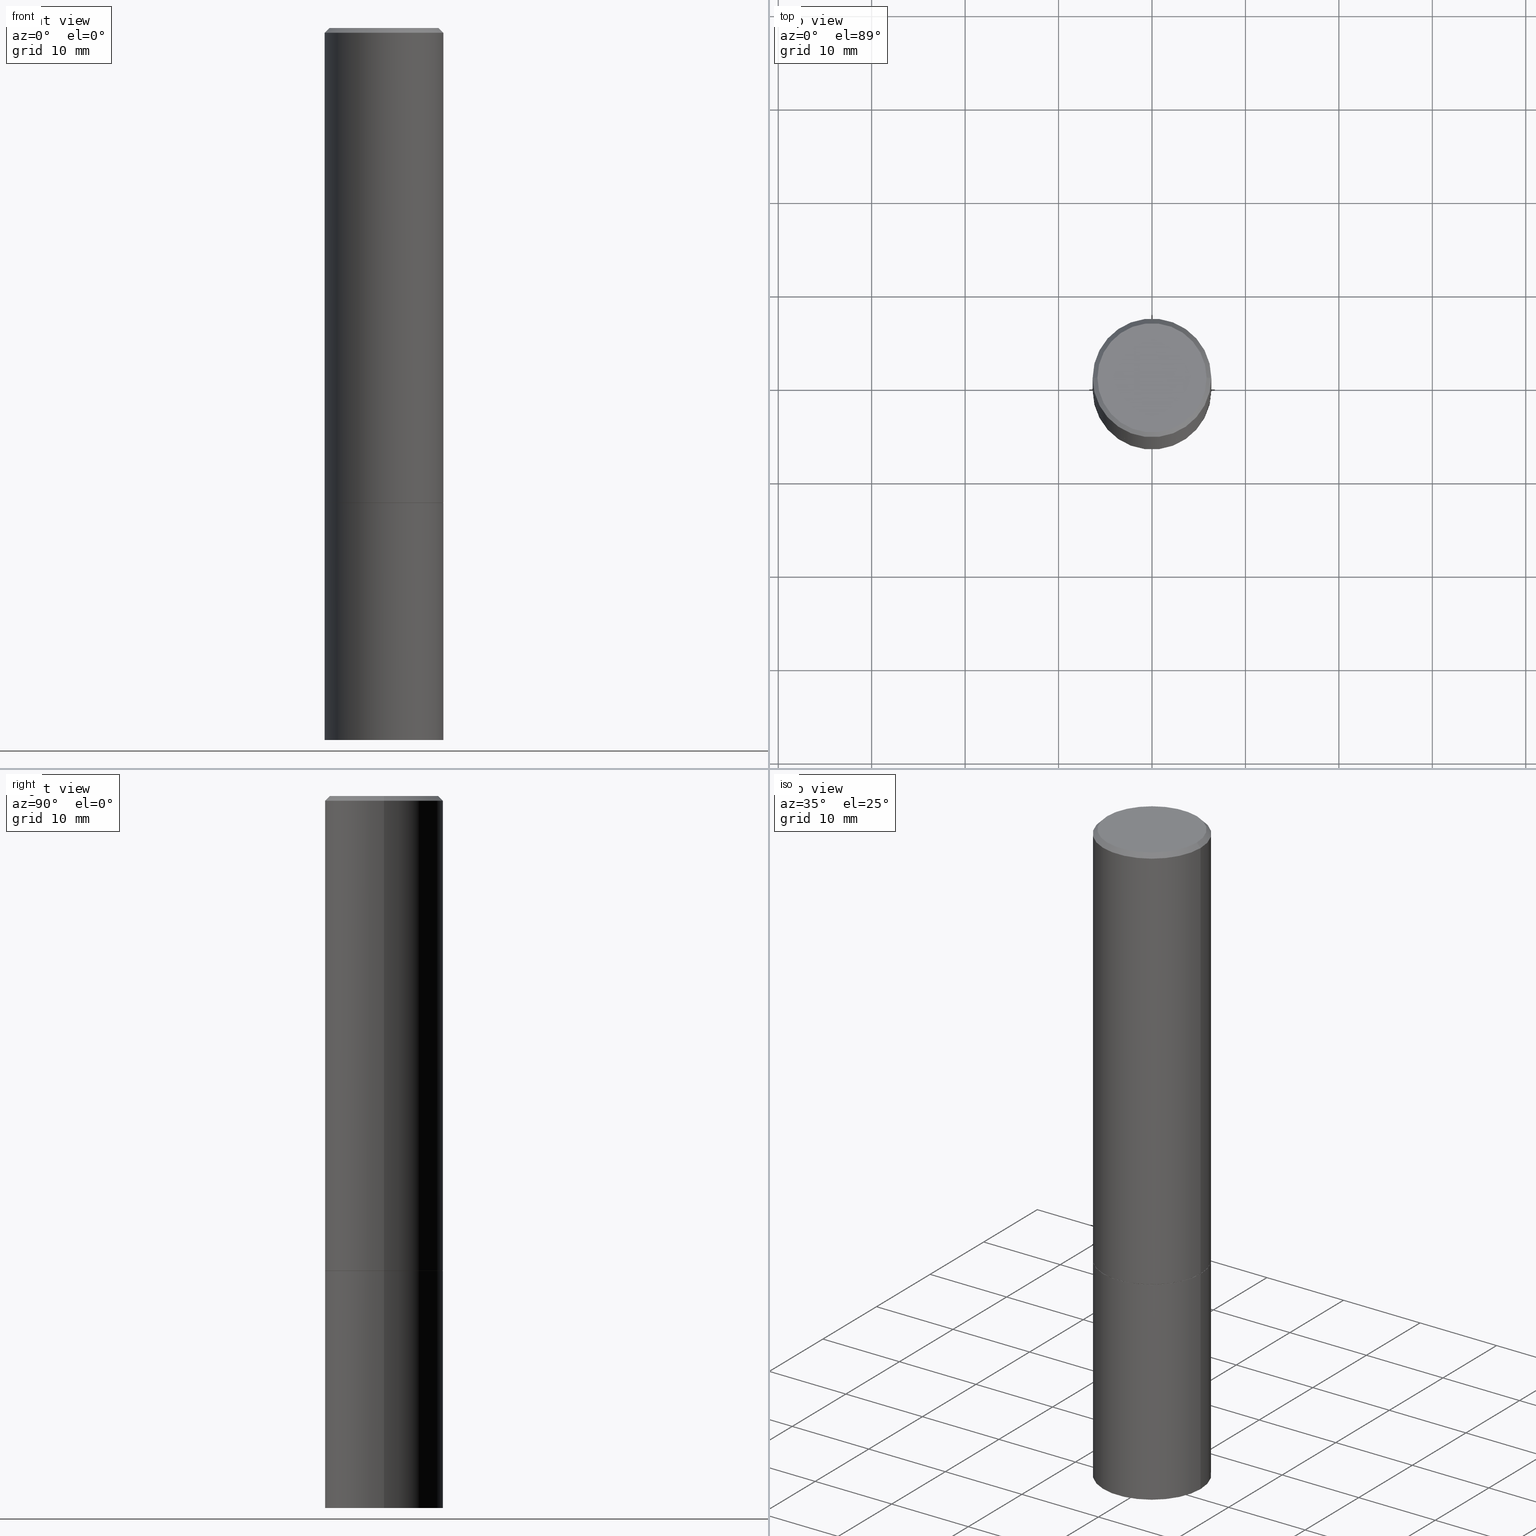
[diagram: canonical four-view strip — front | top / right | iso, engineering-drawing reading convention]
A machine part, canonical four-view strip (front | top / right | iso — engineering-drawing reading convention). The complete STEP part file that produces these views, byte-faithful:
ISO-10303-21;
HEADER;
FILE_DESCRIPTION (( 'STEP AP203' ),
    '1' );
FILE_NAME ('39363.STEP',
    '2024-02-28T00:29:45',
    ( '' ),
    ( '' ),
    'SwSTEP 2.0',
    'SolidWorks 2023',
    '' );
FILE_SCHEMA (( 'CONFIG_CONTROL_DESIGN' ));
ENDSEC;

DATA;
#1 = DIRECTION ( 'NONE',  ( -2.445468806185136597E-29, 3.491481338843145583E-15, 1.000000000000000000 ) ) ;
#2 = CARTESIAN_POINT ( 'NONE',  ( -0.2499999999999998057, 1.675911042644702196E-15, -0.02000000000000005246 ) ) ;
#3 = ADVANCED_FACE ( 'NONE', ( #242 ), #245, .T. ) ;
#4 = DIRECTION ( 'NONE',  ( 2.438088387897960049E-29, -3.491481338843145188E-15, -1.000000000000000000 ) ) ;
#5 = AXIS2_PLACEMENT_3D ( 'NONE', #352, #177, #94 ) ;
#6 =( NAMED_UNIT ( * ) PLANE_ANGLE_UNIT ( ) SI_UNIT ( $, .RADIAN. ) );
#7 = EDGE_LOOP ( 'NONE', ( #306, #108 ) ) ;
#8 = DIRECTION ( 'NONE',  ( -2.445468806185136597E-29, 3.491481338843145583E-15, 1.000000000000000000 ) ) ;
#9 = DIRECTION ( 'NONE',  ( -2.445468806185136877E-29, 3.491481338843145188E-15, 1.000000000000000000 ) ) ;
#10 = ORIENTED_EDGE ( 'NONE', *, *, #91, .T. ) ;
#11 = EDGE_CURVE ( 'NONE', #276, #206, #348, .T. ) ;
#12 = AXIS2_PLACEMENT_3D ( 'NONE', #165, #46, #333 ) ;
#13 = AXIS2_PLACEMENT_3D ( 'NONE', #256, #173, #87 ) ;
#14 = APPROVAL_DATE_TIME ( #267, #261 ) ;
#15 = CARTESIAN_POINT ( 'NONE',  ( -0.2499999999999998057, 1.675911042644702196E-15, -0.02000000000000005246 ) ) ;
#16 = ADVANCED_FACE ( 'NONE', ( #360 ), #269, .T. ) ;
#17 = APPLICATION_PROTOCOL_DEFINITION ( 'international standard', 'config_control_design', 1994, #347 ) ;
#18 = DIRECTION ( 'NONE',  ( -0.7071067811865464625, 2.468850131082245622E-15, -0.7071067811865485719 ) ) ;
#19 = DATE_AND_TIME ( #160, #365 ) ;
#20 = ORIENTED_EDGE ( 'NONE', *, *, #117, .T. ) ;
#21 = CIRCLE ( 'NONE', #13, 0.2499999999999998057 ) ;
#22 = VECTOR ( 'NONE', #145, 39.37007874015748143 ) ;
#23 = PERSON_AND_ORGANIZATION ( #195, #159 ) ;
#24 = DIRECTION ( 'NONE',  ( 1.000000000000000000, -6.982962677686266711E-15, 0.000000000000000000 ) ) ;
#25 = EDGE_LOOP ( 'NONE', ( #158, #217, #324, #154 ) ) ;
#26 = PRODUCT_DEFINITION ( 'UNKNOWN', '', #95, #227 ) ;
#27 = FACE_OUTER_BOUND ( 'NONE', #25, .T. ) ;
#28 = DIRECTION ( 'NONE',  ( -2.445468806185136877E-29, 3.491481338843145188E-15, 1.000000000000000000 ) ) ;
#29 = CC_DESIGN_PERSON_AND_ORGANIZATION_ASSIGNMENT ( #361, #129, ( #93 ) ) ;
#30 = CARTESIAN_POINT ( 'NONE',  ( -0.2500000000000000000, -1.748293572161903489E-15, -1.999000000000000110 ) ) ;
#31 = DIRECTION ( 'NONE',  ( -2.445468806185136597E-29, 3.491481338843145583E-15, 1.000000000000000000 ) ) ;
#32 = CIRCLE ( 'NONE', #5, 0.2489999999999999991 ) ;
#33 = ORIENTED_EDGE ( 'NONE', *, *, #11, .F. ) ;
#34 = ADVANCED_FACE ( 'NONE', ( #130 ), #135, .F. ) ;
#35 = CARTESIAN_POINT ( 'NONE',  ( 4.890937612370274875E-29, -6.982962677686292743E-15, -2.000000000000000444 ) ) ;
#36 = ORIENTED_EDGE ( 'NONE', *, *, #55, .F. ) ;
#37 = CARTESIAN_POINT ( 'NONE',  ( 4.888492143564088712E-29, -6.979471196347448158E-15, -1.999000000000000110 ) ) ;
#38 = ORIENTED_EDGE ( 'NONE', *, *, #117, .F. ) ;
#39 = AXIS2_PLACEMENT_3D ( 'NONE', #291, #209, #92 ) ;
#40 = DIRECTION ( 'NONE',  ( 1.000000000000000000, -6.982962677686262766E-15, 0.000000000000000000 ) ) ;
#41 = VERTEX_POINT ( 'NONE', #105 ) ;
#42 = DIRECTION ( 'NONE',  ( -2.445468806185136597E-29, 3.491481338843145583E-15, 1.000000000000000000 ) ) ;
#43 = CC_DESIGN_DATE_AND_TIME_ASSIGNMENT ( #100, #80, ( #359 ) ) ;
#44 = ORIENTED_EDGE ( 'NONE', *, *, #11, .T. ) ;
#45 = CALENDAR_DATE ( 2024, 27, 2 ) ;
#46 = DIRECTION ( 'NONE',  ( 2.445468806185136597E-29, -3.491481338843145583E-15, -1.000000000000000000 ) ) ;
#47 = APPROVAL_PERSON_ORGANIZATION ( #23, #363, #327 ) ;
#48 = APPROVAL_ROLE ( '' ) ;
#49 = CARTESIAN_POINT ( 'NONE',  ( 1.606081415867839884E-15, 0.2299999999999997879, -8.030407079339228016E-16 ) ) ;
#50 = DATE_AND_TIME ( #277, #253 ) ;
#51 = CARTESIAN_POINT ( 'NONE',  ( -0.2500000000000000000, -6.952346507707613689E-15, -2.000000000000000444 ) ) ;
#52 = PERSON_AND_ORGANIZATION_ROLE ( 'creator' ) ;
#53 = VERTEX_POINT ( 'NONE', #271 ) ;
#54 =( GEOMETRIC_REPRESENTATION_CONTEXT ( 3 ) GLOBAL_UNCERTAINTY_ASSIGNED_CONTEXT ( ( #61 ) ) GLOBAL_UNIT_ASSIGNED_CONTEXT ( ( #326, #6, #66 ) ) REPRESENTATION_CONTEXT ( 'NONE', 'WORKASPACE' ) );
#55 = EDGE_CURVE ( 'NONE', #328, #41, #107, .T. ) ;
#56 = ORIENTED_EDGE ( 'NONE', *, *, #149, .T. ) ;
#57 = APPROVAL ( #239, 'UNSPECIFIED' ) ;
#58 = CARTESIAN_POINT ( 'NONE',  ( 0.000000000000000000, 0.000000000000000000, 0.000000000000000000 ) ) ;
#59 = AXIS2_PLACEMENT_3D ( 'NONE', #74, #163, #248 ) ;
#60 = VECTOR ( 'NONE', #9, 39.37007874015748143 ) ;
#61 = UNCERTAINTY_MEASURE_WITH_UNIT (LENGTH_MEASURE( 1.000000000000000082E-05 ), #326, 'distance_accuracy_value', 'NONE');
#62 = CYLINDRICAL_SURFACE ( 'NONE', #70, 0.2499999999999998890 ) ;
#63 = DIRECTION ( 'NONE',  ( -1.000000000000000000, 6.982962677686265922E-15, -4.876176775795935793E-29 ) ) ;
#64 = DIRECTION ( 'NONE',  ( 1.000000000000000000, -6.982962677686267499E-15, 4.876176775795936353E-29 ) ) ;
#65 = ORIENTED_EDGE ( 'NONE', *, *, #102, .F. ) ;
#66 =( NAMED_UNIT ( * ) SI_UNIT ( $, .STERADIAN. ) SOLID_ANGLE_UNIT ( ) );
#67 = ORIENTED_EDGE ( 'NONE', *, *, #143, .T. ) ;
#68 = CARTESIAN_POINT ( 'NONE',  ( 0.2499999999999998057, -1.784954126219744611E-15, -0.02000000000000005246 ) ) ;
#69 = DIRECTION ( 'NONE',  ( -2.445468806185136597E-29, 3.491481338843145583E-15, 1.000000000000000000 ) ) ;
#70 = AXIS2_PLACEMENT_3D ( 'NONE', #285, #31, #96 ) ;
#71 = APPROVAL_STATUS ( 'not_yet_approved' ) ;
#72 = DIRECTION ( 'NONE',  ( -1.000000000000000000, 6.982962677686265922E-15, -4.876176775795935793E-29 ) ) ;
#73 = PERSON_AND_ORGANIZATION_ROLE ( 'classification_officer' ) ;
#74 = CARTESIAN_POINT ( 'NONE',  ( 0.000000000000000000, 0.000000000000000000, 0.000000000000000000 ) ) ;
#75 = PRODUCT_DEFINITION_SHAPE ( 'NONE', 'NONE',  #26 ) ;
#76 = DIRECTION ( 'NONE',  ( -2.445468806185136597E-29, 3.491481338843145583E-15, 1.000000000000000000 ) ) ;
#77 = APPROVAL_STATUS ( 'not_yet_approved' ) ;
#78 = DIRECTION ( 'NONE',  ( 2.438088387897960049E-29, -3.491481338843145188E-15, -1.000000000000000000 ) ) ;
#79 = EDGE_CURVE ( 'NONE', #116, #152, #161, .T. ) ;
#80 = DATE_TIME_ROLE ( 'classification_date' ) ;
#81 = CARTESIAN_POINT ( 'NONE',  ( 0.000000000000000000, 0.000000000000000000, 0.000000000000000000 ) ) ;
#82 = AXIS2_PLACEMENT_3D ( 'NONE', #58, #1, #142 ) ;
#83 = CC_DESIGN_PERSON_AND_ORGANIZATION_ASSIGNMENT ( #193, #136, ( #95 ) ) ;
#84 = LINE ( 'NONE', #230, #22 ) ;
#85 = CARTESIAN_POINT ( 'NONE',  ( -0.2499999999999998890, 1.776356839400249676E-15, -1.229733772563726025E-29 ) ) ;
#86 = ADVANCED_FACE ( 'NONE', ( #335 ), #202, .T. ) ;
#87 = DIRECTION ( 'NONE',  ( 1.000000000000000000, -6.982962677686266711E-15, 0.000000000000000000 ) ) ;
#88 = LOCAL_TIME ( 19, 29, 45.00000000000000000, #309 ) ;
#89 = FACE_OUTER_BOUND ( 'NONE', #214, .T. ) ;
#90 = CARTESIAN_POINT ( 'NONE',  ( 4.890937612370274875E-29, -6.982962677686292743E-15, -2.000000000000000444 ) ) ;
#91 = EDGE_CURVE ( 'NONE', #125, #206, #308, .T. ) ;
#92 = DIRECTION ( 'NONE',  ( 1.000000000000000000, -6.982962677686267499E-15, 4.876176775795936353E-29 ) ) ;
#93 = PRODUCT ( '39363', '39363', '', ( #218 ) ) ;
#94 = DIRECTION ( 'NONE',  ( 1.000000000000000000, -6.982962677686266711E-15, 0.000000000000000000 ) ) ;
#95 = PRODUCT_DEFINITION_FORMATION_WITH_SPECIFIED_SOURCE ( 'ANY', '', #93, .NOT_KNOWN. ) ;
#96 = DIRECTION ( 'NONE',  ( 1.000000000000000000, -6.982962677686266711E-15, 4.876176775795935793E-29 ) ) ;
#97 = EDGE_CURVE ( 'NONE', #328, #116, #207, .T. ) ;
#98 = CARTESIAN_POINT ( 'NONE',  ( 4.890937612370285420E-31, -6.982962677686308865E-17, -0.02000000000000005246 ) ) ;
#99 = VERTEX_POINT ( 'NONE', #51 ) ;
#100 = DATE_AND_TIME ( #246, #204 ) ;
#101 = ORIENTED_EDGE ( 'NONE', *, *, #102, .T. ) ;
#102 = EDGE_CURVE ( 'NONE', #152, #41, #181, .T. ) ;
#103 = PERSON_AND_ORGANIZATION ( #195, #159 ) ;
#104 = CARTESIAN_POINT ( 'NONE',  ( 4.890937612370274875E-29, -6.982962677686292743E-15, -2.000000000000000444 ) ) ;
#105 = CARTESIAN_POINT ( 'NONE',  ( 0.2500000000000000000, -8.725211865769015625E-15, -1.999000000000000110 ) ) ;
#106 = PERSON_AND_ORGANIZATION_ROLE ( 'design_supplier' ) ;
#107 = LINE ( 'NONE', #357, #126 ) ;
#108 = ORIENTED_EDGE ( 'NONE', *, *, #223, .T. ) ;
#109 = CARTESIAN_POINT ( 'NONE',  ( -0.2299999999999997879, 1.640996229256271139E-15, -1.135408596578604859E-29 ) ) ;
#110 = CIRCLE ( 'NONE', #197, 0.2500000000000000000 ) ;
#111 = DIRECTION ( 'NONE',  ( -1.000000000000000000, 6.982962677686265922E-15, -4.876176775795935793E-29 ) ) ;
#112 = APPLICATION_CONTEXT ( 'configuration controlled 3d designs of mechanical parts and assemblies' ) ;
#113 = FACE_OUTER_BOUND ( 'NONE', #260, .T. ) ;
#114 = ADVANCED_FACE ( 'NONE', ( #137 ), #336, .T. ) ;
#115 = DIRECTION ( 'NONE',  ( -2.445468806185136597E-29, 3.491481338843145583E-15, 1.000000000000000000 ) ) ;
#116 = VERTEX_POINT ( 'NONE', #366 ) ;
#117 = EDGE_CURVE ( 'NONE', #206, #276, #21, .T. ) ;
#118 = CONICAL_SURFACE ( 'NONE', #231, 0.2499999999999998057, 0.7853981633974468357 ) ;
#119 = VERTEX_POINT ( 'NONE', #343 ) ;
#120 = MANIFOLD_SOLID_BREP ( 'Body-Move/Copy2[2]', #301 ) ;
#121 = FACE_OUTER_BOUND ( 'NONE', #156, .T. ) ;
#122 = ORIENTED_EDGE ( 'NONE', *, *, #97, .T. ) ;
#123 = ADVANCED_BREP_SHAPE_REPRESENTATION ( '39363', ( #250, #120, #257 ), #54 ) ;
#124 = CARTESIAN_POINT ( 'NONE',  ( 0.2299999999999997879, -1.681434332853597631E-15, 1.149527484987431960E-29 ) ) ;
#125 = VERTEX_POINT ( 'NONE', #109 ) ;
#126 = VECTOR ( 'NONE', #194, 39.37007874015748143 ) ;
#127 = AXIS2_PLACEMENT_3D ( 'NONE', #35, #42, #236 ) ;
#128 = ADVANCED_FACE ( 'NONE', ( #89 ), #255, .F. ) ;
#129 = PERSON_AND_ORGANIZATION_ROLE ( 'design_owner' ) ;
#130 = FACE_OUTER_BOUND ( 'NONE', #7, .T. ) ;
#131 = PERSON_AND_ORGANIZATION ( #195, #159 ) ;
#132 = ORIENTED_EDGE ( 'NONE', *, *, #243, .T. ) ;
#133 = COORDINATED_UNIVERSAL_TIME_OFFSET ( 5, 0, .BEHIND. ) ;
#134 = EDGE_CURVE ( 'NONE', #152, #206, #315, .T. ) ;
#135 = PLANE ( 'NONE',  #262 ) ;
#136 = PERSON_AND_ORGANIZATION_ROLE ( 'creator' ) ;
#137 = FACE_OUTER_BOUND ( 'NONE', #176, .T. ) ;
#138 = DIRECTION ( 'NONE',  ( -0.7071067811864267805, 7.493145998869918709E-15, 0.7071067811866682540 ) ) ;
#139 = FACE_OUTER_BOUND ( 'NONE', #237, .T. ) ;
#140 = APPROVAL_PERSON_ORGANIZATION ( #162, #261, #48 ) ;
#141 = CARTESIAN_POINT ( 'NONE',  ( 0.2500000000000000000, -1.745740669421566678E-15, 1.219044193948983948E-29 ) ) ;
#142 = DIRECTION ( 'NONE',  ( 1.000000000000000000, -6.982962677686266711E-15, 4.876176775795935793E-29 ) ) ;
#143 = EDGE_CURVE ( 'NONE', #330, #276, #84, .T. ) ;
#144 = CIRCLE ( 'NONE', #182, 0.2299999999999997879 ) ;
#145 = DIRECTION ( 'NONE',  ( 0.7071067811865464625, -7.319954787623252890E-15, -0.7071067811865485719 ) ) ;
#146 = CC_DESIGN_DATE_AND_TIME_ASSIGNMENT ( #50, #329, ( #26 ) ) ;
#147 = DIRECTION ( 'NONE',  ( 2.445468806185136597E-29, -3.491481338843145583E-15, -1.000000000000000000 ) ) ;
#148 = EDGE_LOOP ( 'NONE', ( #354, #67, #44, #220 ) ) ;
#149 = EDGE_CURVE ( 'NONE', #41, #276, #339, .T. ) ;
#150 = CC_DESIGN_PERSON_AND_ORGANIZATION_ASSIGNMENT ( #332, #73, ( #359 ) ) ;
#151 = CARTESIAN_POINT ( 'NONE',  ( 0.2489999999999999991, -8.721720384430172617E-15, -2.000000000000000444 ) ) ;
#152 = VERTEX_POINT ( 'NONE', #30 ) ;
#153 = LENGTH_MEASURE_WITH_UNIT ( LENGTH_MEASURE( 0.02539999999999999897 ), #323 );
#154 = ORIENTED_EDGE ( 'NONE', *, *, #345, .F. ) ;
#155 = COORDINATED_UNIVERSAL_TIME_OFFSET ( 5, 0, .BEHIND. ) ;
#156 = EDGE_LOOP ( 'NONE', ( #122, #266, #240, #36 ) ) ;
#157 = ADVANCED_FACE ( 'NONE', ( #139 ), #200, .T. ) ;
#158 = ORIENTED_EDGE ( 'NONE', *, *, #321, .F. ) ;
#159 = ORGANIZATION ( 'UNSPECIFIED', 'UNSPECIFIED', '' ) ;
#160 = CALENDAR_DATE ( 2024, 27, 2 ) ;
#161 = LINE ( 'NONE', #274, #313 ) ;
#162 = PERSON_AND_ORGANIZATION ( #195, #159 ) ;
#163 = DIRECTION ( 'NONE',  ( -2.445468806185136597E-29, 3.491481338843145583E-15, 1.000000000000000000 ) ) ;
#164 = COORDINATED_UNIVERSAL_TIME_OFFSET ( 5, 0, .BEHIND. ) ;
#165 = CARTESIAN_POINT ( 'NONE',  ( 4.890937612370285420E-31, -6.982962677686308865E-17, -0.02000000000000005246 ) ) ;
#166 = AXIS2_PLACEMENT_3D ( 'NONE', #295, #8, #40 ) ;
#167 = DIRECTION ( 'NONE',  ( 1.000000000000000000, -6.982962677686266711E-15, 0.000000000000000000 ) ) ;
#168 = CARTESIAN_POINT ( 'NONE',  ( 1.745740669421639647E-15, 0.2499999999999895084, -3.000000000000001332 ) ) ;
#169 = EDGE_CURVE ( 'NONE', #119, #53, #224, .T. ) ;
#170 = DIRECTION ( 'NONE',  ( -2.445468806185136877E-29, 3.491481338843145188E-15, 1.000000000000000000 ) ) ;
#171 = VECTOR ( 'NONE', #28, 39.37007874015748143 ) ;
#172 = DIRECTION ( 'NONE',  ( 1.000000000000000000, -6.982962677686265922E-15, 4.876176775795935793E-29 ) ) ;
#173 = DIRECTION ( 'NONE',  ( -2.445468806185136597E-29, 3.491481338843145583E-15, 1.000000000000000000 ) ) ;
#174 = CC_DESIGN_APPROVAL ( #363, ( #26 ) ) ;
#175 = DIRECTION ( 'NONE',  ( -2.445468806185136597E-29, 3.491481338843145583E-15, 1.000000000000000000 ) ) ;
#176 = EDGE_LOOP ( 'NONE', ( #132, #322, #212, #356 ) ) ;
#177 = DIRECTION ( 'NONE',  ( -2.445468806185136597E-29, 3.491481338843145583E-15, 1.000000000000000000 ) ) ;
#178 = EDGE_LOOP ( 'NONE', ( #221, #296, #311, #65 ) ) ;
#179 = CARTESIAN_POINT ( 'NONE',  ( -0.2500000000000000000, 1.776356839400250465E-15, -1.229733772563726445E-29 ) ) ;
#180 = ORIENTED_EDGE ( 'NONE', *, *, #143, .F. ) ;
#181 = CIRCLE ( 'NONE', #225, 0.2500000000000000000 ) ;
#182 = AXIS2_PLACEMENT_3D ( 'NONE', #297, #175, #64 ) ;
#183 = DIRECTION ( 'NONE',  ( 1.000000000000000000, -6.982962677686262766E-15, 0.000000000000000000 ) ) ;
#184 = ORIENTED_EDGE ( 'NONE', *, *, #134, .F. ) ;
#185 = CC_DESIGN_SECURITY_CLASSIFICATION ( #359, ( #95 ) ) ;
#186 = DIRECTION ( 'NONE',  ( -1.000000000000000000, 6.982962677686266711E-15, 0.000000000000000000 ) ) ;
#187 = EDGE_LOOP ( 'NONE', ( #180, #298, #10, #20 ) ) ;
#188 = SECURITY_CLASSIFICATION_LEVEL ( 'unclassified' ) ;
#189 = ORIENTED_EDGE ( 'NONE', *, *, #286, .F. ) ;
#190 = ORIENTED_EDGE ( 'NONE', *, *, #229, .F. ) ;
#191 = LOCAL_TIME ( 19, 29, 45.00000000000000000, #133 ) ;
#192 = DIRECTION ( 'NONE',  ( 1.000000000000000000, -6.982962677686266711E-15, 0.000000000000000000 ) ) ;
#193 = PERSON_AND_ORGANIZATION ( #195, #159 ) ;
#194 = DIRECTION ( 'NONE',  ( 0.7071067811864267805, -2.468850131080992517E-15, 0.7071067811866682540 ) ) ;
#195 = PERSON ( 'UNSPECIFIED', 'UNSPECIFIED', 'UNSPECIFIED', ('UNSPECIFIED'), ('UNSPECIFIED'), ('UNSPECIFIED') ) ;
#196 = DIRECTION ( 'NONE',  ( -2.445468806185136597E-29, 3.491481338843145583E-15, 1.000000000000000000 ) ) ;
#197 = AXIS2_PLACEMENT_3D ( 'NONE', #232, #320, #346 ) ;
#198 = ADVANCED_FACE ( 'NONE', ( #341 ), #312, .F. ) ;
#199 = DIRECTION ( 'NONE',  ( -2.438088387897960049E-29, 3.491481338843145188E-15, 1.000000000000000000 ) ) ;
#200 = PLANE ( 'NONE',  #219 ) ;
#201 = CARTESIAN_POINT ( 'NONE',  ( 1.745740669421615390E-15, 0.2499999999999930334, -2.000000000000000888 ) ) ;
#202 = CONICAL_SURFACE ( 'NONE', #12, 0.2499999999999998057, 0.7853981633974468357 ) ;
#203 = ADVANCED_FACE ( 'NONE', ( #27 ), #284, .T. ) ;
#204 = LOCAL_TIME ( 19, 29, 45.00000000000000000, #273 ) ;
#205 = DIRECTION ( 'NONE',  ( 1.000000000000000000, -6.982962677686266711E-15, 0.000000000000000000 ) ) ;
#206 = VERTEX_POINT ( 'NONE', #2 ) ;
#207 = CIRCLE ( 'NONE', #331, 0.2489999999999999991 ) ;
#208 = CIRCLE ( 'NONE', #325, 0.2500000000000000000 ) ;
#209 = DIRECTION ( 'NONE',  ( -2.445468806185136597E-29, 3.491481338843145583E-15, 1.000000000000000000 ) ) ;
#210 = ORIENTED_EDGE ( 'NONE', *, *, #345, .T. ) ;
#211 = DIRECTION ( 'NONE',  ( 1.000000000000000000, 0.000000000000000000, 0.000000000000000000 ) ) ;
#212 = ORIENTED_EDGE ( 'NONE', *, *, #272, .F. ) ;
#213 = CARTESIAN_POINT ( 'NONE',  ( -0.2500000000000000000, -6.952346507707613689E-15, -3.000000000000000444 ) ) ;
#214 = EDGE_LOOP ( 'NONE', ( #292, #189 ) ) ;
#215 = CARTESIAN_POINT ( 'NONE',  ( 4.890937612370285420E-31, -6.982962677686308865E-17, -0.02000000000000005246 ) ) ;
#216 = ADVANCED_FACE ( 'NONE', ( #113 ), #62, .T. ) ;
#217 = ORIENTED_EDGE ( 'NONE', *, *, #229, .T. ) ;
#218 = MECHANICAL_CONTEXT ( 'NONE', #112, 'mechanical' ) ;
#219 = AXIS2_PLACEMENT_3D ( 'NONE', #168, #4, #63 ) ;
#220 = ORIENTED_EDGE ( 'NONE', *, *, #91, .F. ) ;
#221 = ORIENTED_EDGE ( 'NONE', *, *, #79, .F. ) ;
#222 = CARTESIAN_POINT ( 'NONE',  ( 4.888492143564088712E-29, -6.979471196347448158E-15, -1.999000000000000110 ) ) ;
#223 = EDGE_CURVE ( 'NONE', #330, #125, #283, .T. ) ;
#224 = LINE ( 'NONE', #141, #226 ) ;
#225 = AXIS2_PLACEMENT_3D ( 'NONE', #222, #278, #24 ) ;
#226 = VECTOR ( 'NONE', #170, 39.37007874015748143 ) ;
#227 = DESIGN_CONTEXT ( 'detailed design', #347, 'design' ) ;
#228 = DIRECTION ( 'NONE',  ( 1.000000000000000000, -6.982962677686266711E-15, 4.876176775795935793E-29 ) ) ;
#229 = EDGE_CURVE ( 'NONE', #268, #119, #310, .T. ) ;
#230 = CARTESIAN_POINT ( 'NONE',  ( 0.2499999999999998057, -1.784954126219744611E-15, -0.02000000000000005246 ) ) ;
#231 = AXIS2_PLACEMENT_3D ( 'NONE', #98, #147, #186 ) ;
#232 = CARTESIAN_POINT ( 'NONE',  ( 4.890937612370273754E-29, -6.982962677686291954E-15, -2.000000000000000444 ) ) ;
#233 = CARTESIAN_POINT ( 'NONE',  ( 0.000000000000000000, 0.000000000000000000, 0.000000000000000000 ) ) ;
#234 = CARTESIAN_POINT ( 'NONE',  ( 7.336406418555409790E-29, -1.047444401652943635E-14, -3.000000000000000444 ) ) ;
#235 = ORIENTED_EDGE ( 'NONE', *, *, #243, .F. ) ;
#236 = DIRECTION ( 'NONE',  ( 1.000000000000000000, -6.982962677686266711E-15, 0.000000000000000000 ) ) ;
#237 = EDGE_LOOP ( 'NONE', ( #235, #190 ) ) ;
#238 = AXIS2_PLACEMENT_3D ( 'NONE', #90, #199, #172 ) ;
#239 = APPROVAL_STATUS ( 'not_yet_approved' ) ;
#240 = ORIENTED_EDGE ( 'NONE', *, *, #280, .F. ) ;
#241 = DATE_AND_TIME ( #45, #88 ) ;
#242 = FACE_OUTER_BOUND ( 'NONE', #290, .T. ) ;
#243 = EDGE_CURVE ( 'NONE', #119, #268, #314, .T. ) ;
#244 = APPROVAL_ROLE ( '' ) ;
#245 = CYLINDRICAL_SURFACE ( 'NONE', #59, 0.2499999999999998890 ) ;
#246 = CALENDAR_DATE ( 2024, 27, 2 ) ;
#247 = APPROVAL_PERSON_ORGANIZATION ( #334, #57, #244 ) ;
#248 = DIRECTION ( 'NONE',  ( 1.000000000000000000, -6.982962677686266711E-15, 4.876176775795935793E-29 ) ) ;
#249 = EDGE_LOOP ( 'NONE', ( #279, #210 ) ) ;
#250 = MANIFOLD_SOLID_BREP ( 'Body-Move/Copy2[1]', #364 ) ;
#251 = ORIENTED_EDGE ( 'NONE', *, *, #280, .T. ) ;
#252 = DIRECTION ( 'NONE',  ( -2.445468806185136877E-29, 3.491481338843145188E-15, 1.000000000000000000 ) ) ;
#253 = LOCAL_TIME ( 19, 29, 45.00000000000000000, #164 ) ;
#254 = ADVANCED_FACE ( 'NONE', ( #265 ), #118, .T. ) ;
#255 = PLANE ( 'NONE',  #238 ) ;
#256 = CARTESIAN_POINT ( 'NONE',  ( 4.890937612370285420E-31, -6.982962677686308865E-17, -0.02000000000000005246 ) ) ;
#257 = AXIS2_PLACEMENT_3D ( 'NONE', #233, #350, #211 ) ;
#258 = DIRECTION ( 'NONE',  ( 1.000000000000000000, -6.982962677686266711E-15, 0.000000000000000000 ) ) ;
#259 = EDGE_CURVE ( 'NONE', #125, #330, #144, .T. ) ;
#260 = EDGE_LOOP ( 'NONE', ( #184, #101, #56, #38 ) ) ;
#261 = APPROVAL ( #77, 'UNSPECIFIED' ) ;
#262 = AXIS2_PLACEMENT_3D ( 'NONE', #49, #78, #72 ) ;
#263 = CC_DESIGN_APPROVAL ( #261, ( #95 ) ) ;
#264 = DIRECTION ( 'NONE',  ( -2.445468806185136597E-29, 3.491481338843145583E-15, 1.000000000000000000 ) ) ;
#265 = FACE_OUTER_BOUND ( 'NONE', #148, .T. ) ;
#266 = ORIENTED_EDGE ( 'NONE', *, *, #79, .T. ) ;
#267 = DATE_AND_TIME ( #302, #191 ) ;
#268 = VERTEX_POINT ( 'NONE', #213 ) ;
#269 = CONICAL_SURFACE ( 'NONE', #287, 0.2489999999999999991, 0.7853981633972775267 ) ;
#270 = AXIS2_PLACEMENT_3D ( 'NONE', #201, #337, #111 ) ;
#271 = CARTESIAN_POINT ( 'NONE',  ( 0.2500000000000000000, -8.728703347107858632E-15, -2.000000000000000444 ) ) ;
#272 = EDGE_CURVE ( 'NONE', #53, #99, #110, .T. ) ;
#273 = COORDINATED_UNIVERSAL_TIME_OFFSET ( 5, 0, .BEHIND. ) ;
#274 = CARTESIAN_POINT ( 'NONE',  ( -0.2489999999999999991, -5.213711265643643286E-15, -2.000000000000000444 ) ) ;
#275 = APPROVAL_DATE_TIME ( #241, #57 ) ;
#276 = VERTEX_POINT ( 'NONE', #68 ) ;
#277 = CALENDAR_DATE ( 2024, 27, 2 ) ;
#278 = DIRECTION ( 'NONE',  ( -2.445468806185136597E-29, 3.491481338843145583E-15, 1.000000000000000000 ) ) ;
#279 = ORIENTED_EDGE ( 'NONE', *, *, #272, .T. ) ;
#280 = EDGE_CURVE ( 'NONE', #41, #152, #288, .T. ) ;
#281 = CARTESIAN_POINT ( 'NONE',  ( 0.2499999999999998890, -1.745740669421565889E-15, 1.219044193948983388E-29 ) ) ;
#282 = VECTOR ( 'NONE', #18, 39.37007874015748143 ) ;
#283 = CIRCLE ( 'NONE', #39, 0.2299999999999997879 ) ;
#284 = CYLINDRICAL_SURFACE ( 'NONE', #82, 0.2500000000000000000 ) ;
#285 = CARTESIAN_POINT ( 'NONE',  ( 0.000000000000000000, 0.000000000000000000, 0.000000000000000000 ) ) ;
#286 = EDGE_CURVE ( 'NONE', #116, #328, #32, .T. ) ;
#287 = AXIS2_PLACEMENT_3D ( 'NONE', #299, #358, #167 ) ;
#288 = CIRCLE ( 'NONE', #349, 0.2500000000000000000 ) ;
#289 = LINE ( 'NONE', #179, #60 ) ;
#290 = EDGE_LOOP ( 'NONE', ( #251, #317, #33, #351 ) ) ;
#291 = CARTESIAN_POINT ( 'NONE',  ( 0.000000000000000000, 0.000000000000000000, 0.000000000000000000 ) ) ;
#292 = ORIENTED_EDGE ( 'NONE', *, *, #97, .F. ) ;
#293 = AXIS2_PLACEMENT_3D ( 'NONE', #215, #303, #362 ) ;
#294 = CC_DESIGN_APPROVAL ( #57, ( #359 ) ) ;
#295 = CARTESIAN_POINT ( 'NONE',  ( 7.336406418555409790E-29, -1.047444401652943635E-14, -3.000000000000000444 ) ) ;
#296 = ORIENTED_EDGE ( 'NONE', *, *, #286, .T. ) ;
#297 = CARTESIAN_POINT ( 'NONE',  ( 0.000000000000000000, 0.000000000000000000, 0.000000000000000000 ) ) ;
#298 = ORIENTED_EDGE ( 'NONE', *, *, #259, .F. ) ;
#299 = CARTESIAN_POINT ( 'NONE',  ( 4.890937612370274875E-29, -6.982962677686292743E-15, -2.000000000000000444 ) ) ;
#300 = CC_DESIGN_PERSON_AND_ORGANIZATION_ASSIGNMENT ( #103, #52, ( #26 ) ) ;
#301 = CLOSED_SHELL ( 'NONE', ( #338, #3, #254, #86, #216, #16, #128, #34 ) ) ;
#302 = CALENDAR_DATE ( 2024, 27, 2 ) ;
#303 = DIRECTION ( 'NONE',  ( -2.445468806185136597E-29, 3.491481338843145583E-15, 1.000000000000000000 ) ) ;
#304 = CC_DESIGN_PERSON_AND_ORGANIZATION_ASSIGNMENT ( #131, #106, ( #95 ) ) ;
#305 = SHAPE_DEFINITION_REPRESENTATION ( #75, #123 ) ;
#306 = ORIENTED_EDGE ( 'NONE', *, *, #259, .T. ) ;
#307 = APPROVAL_DATE_TIME ( #19, #363 ) ;
#308 = LINE ( 'NONE', #15, #282 ) ;
#309 = COORDINATED_UNIVERSAL_TIME_OFFSET ( 5, 0, .BEHIND. ) ;
#310 = CIRCLE ( 'NONE', #355, 0.2500000000000000000 ) ;
#311 = ORIENTED_EDGE ( 'NONE', *, *, #55, .T. ) ;
#312 = PLANE ( 'NONE',  #270 ) ;
#313 = VECTOR ( 'NONE', #138, 39.37007874015748143 ) ;
#314 = CIRCLE ( 'NONE', #166, 0.2500000000000000000 ) ;
#315 = LINE ( 'NONE', #85, #319 ) ;
#316 = APPLICATION_PROTOCOL_DEFINITION ( 'international standard', 'config_control_design', 1994, #112 ) ;
#317 = ORIENTED_EDGE ( 'NONE', *, *, #134, .T. ) ;
#318 = AXIS2_PLACEMENT_3D ( 'NONE', #81, #196, #228 ) ;
#319 = VECTOR ( 'NONE', #252, 39.37007874015748143 ) ;
#320 = DIRECTION ( 'NONE',  ( -2.445468806185136597E-29, 3.491481338843145583E-15, 1.000000000000000000 ) ) ;
#321 = EDGE_CURVE ( 'NONE', #268, #99, #289, .T. ) ;
#322 = ORIENTED_EDGE ( 'NONE', *, *, #321, .T. ) ;
#323 =( LENGTH_UNIT ( ) NAMED_UNIT ( * ) SI_UNIT ( $, .METRE. ) );
#324 = ORIENTED_EDGE ( 'NONE', *, *, #169, .T. ) ;
#325 = AXIS2_PLACEMENT_3D ( 'NONE', #353, #69, #258 ) ;
#326 =( CONVERSION_BASED_UNIT ( 'INCH', #153 ) LENGTH_UNIT ( ) NAMED_UNIT ( #344 ) );
#327 = APPROVAL_ROLE ( '' ) ;
#328 = VERTEX_POINT ( 'NONE', #151 ) ;
#329 = DATE_TIME_ROLE ( 'creation_date' ) ;
#330 = VERTEX_POINT ( 'NONE', #124 ) ;
#331 = AXIS2_PLACEMENT_3D ( 'NONE', #104, #76, #192 ) ;
#332 = PERSON_AND_ORGANIZATION ( #195, #159 ) ;
#333 = DIRECTION ( 'NONE',  ( -1.000000000000000000, 6.982962677686266711E-15, 0.000000000000000000 ) ) ;
#334 = PERSON_AND_ORGANIZATION ( #195, #159 ) ;
#335 = FACE_OUTER_BOUND ( 'NONE', #187, .T. ) ;
#336 = CYLINDRICAL_SURFACE ( 'NONE', #318, 0.2500000000000000000 ) ;
#337 = DIRECTION ( 'NONE',  ( 2.438088387897960049E-29, -3.491481338843145188E-15, -1.000000000000000000 ) ) ;
#338 = ADVANCED_FACE ( 'NONE', ( #121 ), #342, .T. ) ;
#339 = LINE ( 'NONE', #281, #171 ) ;
#340 = PRODUCT_RELATED_PRODUCT_CATEGORY ( 'detail', '', ( #93 ) ) ;
#341 = FACE_OUTER_BOUND ( 'NONE', #249, .T. ) ;
#342 = CONICAL_SURFACE ( 'NONE', #127, 0.2489999999999999991, 0.7853981633972775267 ) ;
#343 = CARTESIAN_POINT ( 'NONE',  ( 0.2500000000000000000, -1.222018468595100303E-14, -3.000000000000000444 ) ) ;
#344 = DIMENSIONAL_EXPONENTS ( 1.000000000000000000, 0.000000000000000000, 0.000000000000000000, 0.000000000000000000, 0.000000000000000000, 0.000000000000000000, 0.000000000000000000 ) ;
#345 = EDGE_CURVE ( 'NONE', #99, #53, #208, .T. ) ;
#346 = DIRECTION ( 'NONE',  ( 1.000000000000000000, -6.982962677686266711E-15, 0.000000000000000000 ) ) ;
#347 = APPLICATION_CONTEXT ( 'configuration controlled 3d designs of mechanical parts and assemblies' ) ;
#348 = CIRCLE ( 'NONE', #293, 0.2499999999999998057 ) ;
#349 = AXIS2_PLACEMENT_3D ( 'NONE', #37, #115, #205 ) ;
#350 = DIRECTION ( 'NONE',  ( 0.000000000000000000, 0.000000000000000000, 1.000000000000000000 ) ) ;
#351 = ORIENTED_EDGE ( 'NONE', *, *, #149, .F. ) ;
#352 = CARTESIAN_POINT ( 'NONE',  ( 4.890937612370274875E-29, -6.982962677686292743E-15, -2.000000000000000444 ) ) ;
#353 = CARTESIAN_POINT ( 'NONE',  ( 4.890937612370273754E-29, -6.982962677686291954E-15, -2.000000000000000444 ) ) ;
#354 = ORIENTED_EDGE ( 'NONE', *, *, #223, .F. ) ;
#355 = AXIS2_PLACEMENT_3D ( 'NONE', #234, #264, #183 ) ;
#356 = ORIENTED_EDGE ( 'NONE', *, *, #169, .F. ) ;
#357 = CARTESIAN_POINT ( 'NONE',  ( 0.2489999999999999991, -8.721720384430172617E-15, -2.000000000000000444 ) ) ;
#358 = DIRECTION ( 'NONE',  ( -2.445468806185136597E-29, 3.491481338843145583E-15, 1.000000000000000000 ) ) ;
#359 = SECURITY_CLASSIFICATION ( '', '', #188 ) ;
#360 = FACE_OUTER_BOUND ( 'NONE', #178, .T. ) ;
#361 = PERSON_AND_ORGANIZATION ( #195, #159 ) ;
#362 = DIRECTION ( 'NONE',  ( 1.000000000000000000, -6.982962677686266711E-15, 0.000000000000000000 ) ) ;
#363 = APPROVAL ( #71, 'UNSPECIFIED' ) ;
#364 = CLOSED_SHELL ( 'NONE', ( #114, #157, #198, #203 ) ) ;
#365 = LOCAL_TIME ( 19, 29, 45.00000000000000000, #155 ) ;
#366 = CARTESIAN_POINT ( 'NONE',  ( -0.2489999999999999991, -5.208412811295420884E-15, -2.000000000000000444 ) ) ;
ENDSEC;
END-ISO-10303-21;
